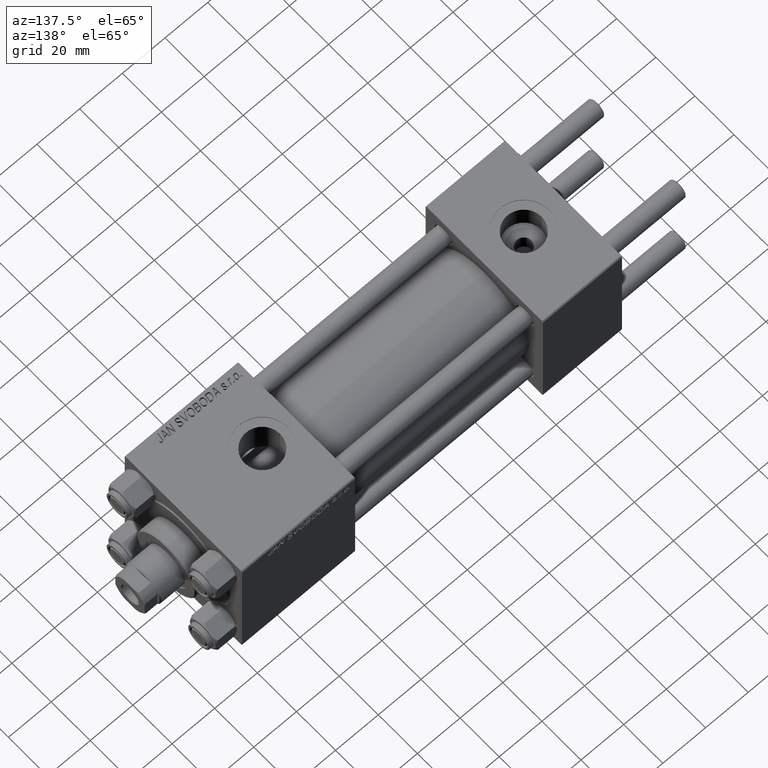
[diagram: clean part render]
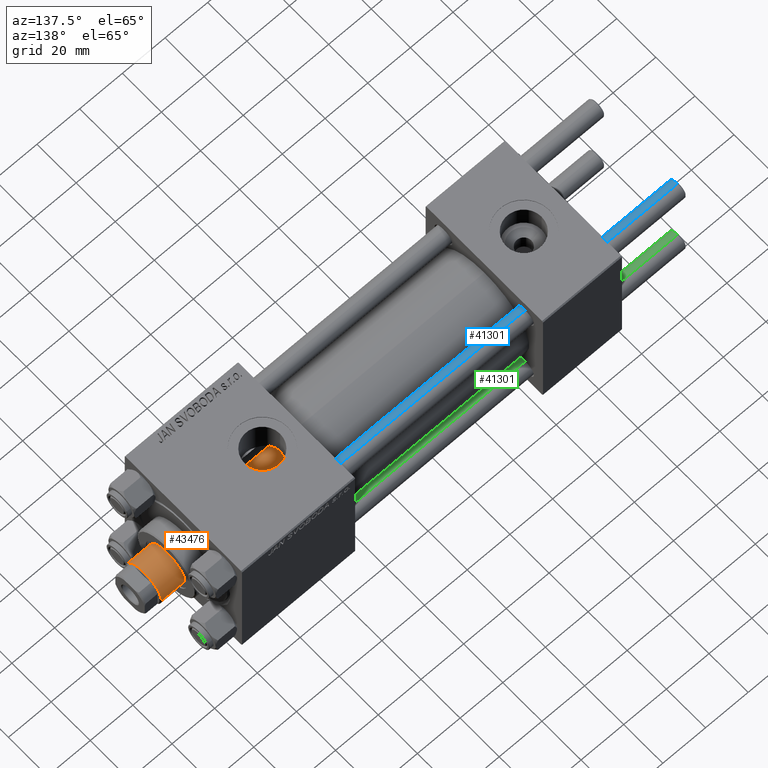
[diagram: same view with three faces highlighted in distinct colors, each labeled with its STEP entity id]
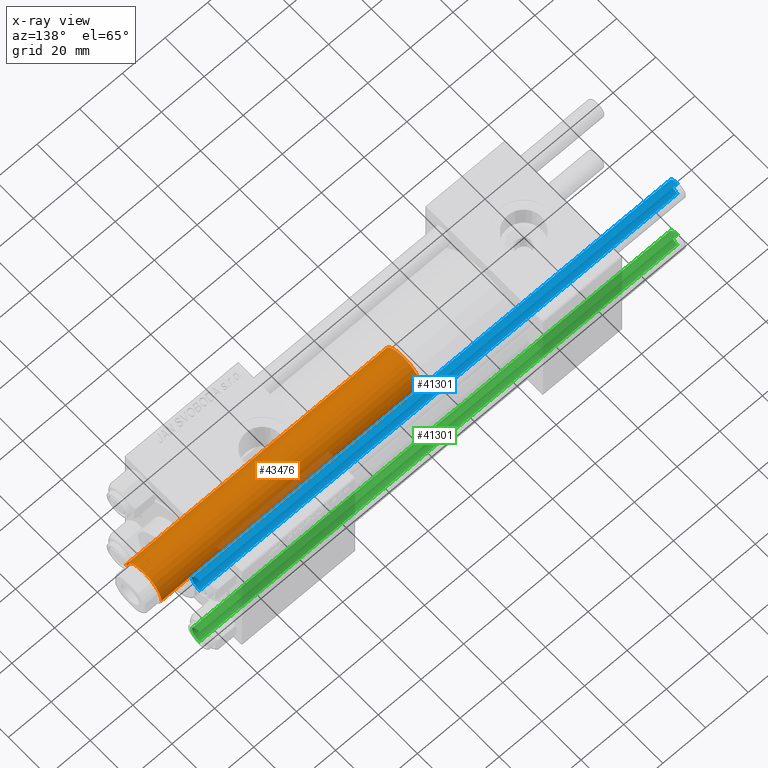
[diagram: x-ray of the same camera — body ghosted, the three highlighted faces saturated]
A machine part, auxiliary view with three faces highlighted in distinct colors.
The next image is the same camera in x-ray (body ghosted, the three faces saturated) — at least one of them is partly hidden behind the body in this view.
Their STEP definitions:

[orange] entity #43476 — the highlighted cylindrical surface (edge-blend (fillet) strip) has radius 9 mm, axis along (-1, 0, 0).
#1120 = CIRCLE ( 'NONE', #29295, 9.000000000000000000 ) ;
#7113 = LINE ( 'NONE', #37871, #36072 ) ;
#9808 = ORIENTED_EDGE ( 'NONE', *, *, #48099, .F. ) ;
#12389 = DIRECTION ( 'NONE',  ( -0.000000000000000000, -0.000000000000000000, -1.000000000000000000 ) ) ;
#14988 = EDGE_LOOP ( 'NONE', ( #9808, #23726, #15694, #40327 ) ) ;
#15213 = DIRECTION ( 'NONE',  ( -0.000000000000000000, -0.000000000000000000, -1.000000000000000000 ) ) ;
#15694 = ORIENTED_EDGE ( 'NONE', *, *, #18549, .T. ) ;
#16076 = CIRCLE ( 'NONE', #33002, 9.000000000000000000 ) ;
#16570 = VERTEX_POINT ( 'NONE', #23698 ) ;
#17887 = DIRECTION ( 'NONE',  ( 0.000000000000000000, 0.000000000000000000, -1.000000000000000000 ) ) ;
#18549 = EDGE_CURVE ( 'NONE', #21664, #40145, #7113, .T. ) ;
#18854 = EDGE_CURVE ( 'NONE', #16570, #21664, #16076, .T. ) ;
#20894 = EDGE_CURVE ( 'NONE', #40145, #45475, #1120, .T. ) ;
#21664 = VERTEX_POINT ( 'NONE', #38221 ) ;
#22798 = FACE_OUTER_BOUND ( 'NONE', #14988, .T. ) ;
#23698 = CARTESIAN_POINT ( 'NONE',  ( 9.000000000000000000, 1.102182119232617517E-15, 159.5000000000000853 ) ) ;
#23726 = ORIENTED_EDGE ( 'NONE', *, *, #18854, .T. ) ;
#29295 = AXIS2_PLACEMENT_3D ( 'NONE', #49321, #34175, #30151 ) ;
#30048 = DIRECTION ( 'NONE',  ( -0.000000000000000000, -0.000000000000000000, -1.000000000000000000 ) ) ;
#30151 = DIRECTION ( 'NONE',  ( 1.000000000000000000, 0.000000000000000000, 0.000000000000000000 ) ) ;
#30565 = CARTESIAN_POINT ( 'NONE',  ( -9.000000000000000000, 0.000000000000000000, 38.00000000000000000 ) ) ;
#33002 = AXIS2_PLACEMENT_3D ( 'NONE', #45863, #17887, #33526 ) ;
#33021 = AXIS2_PLACEMENT_3D ( 'NONE', #49794, #15213, #46246 ) ;
#33526 = DIRECTION ( 'NONE',  ( 1.000000000000000000, 0.000000000000000000, 0.000000000000000000 ) ) ;
#34175 = DIRECTION ( 'NONE',  ( 0.000000000000000000, 0.000000000000000000, 1.000000000000000000 ) ) ;
#36072 = VECTOR ( 'NONE', #30048, 1000.000000000000000 ) ;
#37871 = CARTESIAN_POINT ( 'NONE',  ( -9.000000000000000000, 0.000000000000000000, 160.0000000000000000 ) ) ;
#38182 = CYLINDRICAL_SURFACE ( 'NONE', #33021, 9.000000000000000000 ) ;
#38221 = CARTESIAN_POINT ( 'NONE',  ( -9.000000000000000000, 0.000000000000000000, 159.5000000000000853 ) ) ;
#38479 = CARTESIAN_POINT ( 'NONE',  ( 9.000000000000000000, 1.102182119232617517E-15, 38.00000000000000000 ) ) ;
#40145 = VERTEX_POINT ( 'NONE', #30565 ) ;
#40327 = ORIENTED_EDGE ( 'NONE', *, *, #20894, .T. ) ;
#42816 = VECTOR ( 'NONE', #12389, 1000.000000000000000 ) ;
#43406 = CARTESIAN_POINT ( 'NONE',  ( 9.000000000000000000, 1.102182119232617517E-15, 160.0000000000000000 ) ) ;
#43476 = ADVANCED_FACE ( 'NONE', ( #22798 ), #38182, .T. ) ;
#45475 = VERTEX_POINT ( 'NONE', #38479 ) ;
#45863 = CARTESIAN_POINT ( 'NONE',  ( 0.000000000000000000, 0.000000000000000000, 159.5000000000000853 ) ) ;
#46246 = DIRECTION ( 'NONE',  ( -1.000000000000000000, 0.000000000000000000, 0.000000000000000000 ) ) ;
#46940 = LINE ( 'NONE', #43406, #42816 ) ;
#48099 = EDGE_CURVE ( 'NONE', #16570, #45475, #46940, .T. ) ;
#49321 = CARTESIAN_POINT ( 'NONE',  ( 0.000000000000000000, 0.000000000000000000, 38.00000000000000000 ) ) ;
#49794 = CARTESIAN_POINT ( 'NONE',  ( 0.000000000000000000, 0.000000000000000000, 160.0000000000000000 ) ) ;

[blue] entity #41301 — the highlighted cylindrical surface (edge-blend (fillet) strip) has radius 4 mm, axis along (-1, -0, -0).
#277 = DIRECTION ( 'NONE',  ( 1.000000000000000000, 0.000000000000000000, 0.000000000000000000 ) ) ;
#646 = CYLINDRICAL_SURFACE ( 'NONE', #49187, 4.000000000000000000 ) ;
#1673 = CARTESIAN_POINT ( 'NONE',  ( -4.000000000000000000, 0.000000000000000000, 225.0000000000000000 ) ) ;
#1721 = DIRECTION ( 'NONE',  ( 0.000000000000000000, 0.000000000000000000, -1.000000000000000000 ) ) ;
#1852 = ORIENTED_EDGE ( 'NONE', *, *, #9739, .T. ) ;
#4015 = LINE ( 'NONE', #8553, #32376 ) ;
#4222 = CARTESIAN_POINT ( 'NONE',  ( -4.000000000000000000, 0.000000000000000000, 224.5000000000000000 ) ) ;
#6000 = CARTESIAN_POINT ( 'NONE',  ( 0.000000000000000000, 0.000000000000000000, 224.5000000000000000 ) ) ;
#8200 = ORIENTED_EDGE ( 'NONE', *, *, #8519, .T. ) ;
#8463 = VERTEX_POINT ( 'NONE', #4222 ) ;
#8519 = EDGE_CURVE ( 'NONE', #8463, #45992, #20829, .T. ) ;
#8553 = CARTESIAN_POINT ( 'NONE',  ( 4.000000000000000000, 4.898587196589412829E-16, 225.0000000000000000 ) ) ;
#9739 = EDGE_CURVE ( 'NONE', #45992, #28986, #10827, .T. ) ;
#9976 = VECTOR ( 'NONE', #39267, 1000.000000000000000 ) ;
#10827 = CIRCLE ( 'NONE', #19694, 4.000000000000000000 ) ;
#10943 = CARTESIAN_POINT ( 'NONE',  ( 4.000000000000000000, 4.898587196589412829E-16, 0.5000000000000281997 ) ) ;
#14560 = ORIENTED_EDGE ( 'NONE', *, *, #47577, .F. ) ;
#19694 = AXIS2_PLACEMENT_3D ( 'NONE', #34815, #30536, #277 ) ;
#20498 = CARTESIAN_POINT ( 'NONE',  ( -4.000000000000000000, 0.000000000000000000, 0.5000000000000281997 ) ) ;
#20829 = LINE ( 'NONE', #1673, #9976 ) ;
#22615 = CIRCLE ( 'NONE', #37840, 4.000000000000000000 ) ;
#27782 = CARTESIAN_POINT ( 'NONE',  ( 4.000000000000000000, 4.898587196589412829E-16, 224.5000000000000000 ) ) ;
#27870 = DIRECTION ( 'NONE',  ( -0.000000000000000000, -0.000000000000000000, -1.000000000000000000 ) ) ;
#28986 = VERTEX_POINT ( 'NONE', #10943 ) ;
#30536 = DIRECTION ( 'NONE',  ( -0.000000000000000000, -0.000000000000000000, 1.000000000000000000 ) ) ;
#30984 = DIRECTION ( 'NONE',  ( -0.000000000000000000, -0.000000000000000000, -1.000000000000000000 ) ) ;
#31398 = CARTESIAN_POINT ( 'NONE',  ( 0.000000000000000000, 0.000000000000000000, 225.0000000000000000 ) ) ;
#32376 = VECTOR ( 'NONE', #30984, 1000.000000000000000 ) ;
#32640 = EDGE_LOOP ( 'NONE', ( #14560, #33694, #8200, #1852 ) ) ;
#33694 = ORIENTED_EDGE ( 'NONE', *, *, #42943, .T. ) ;
#34815 = CARTESIAN_POINT ( 'NONE',  ( 0.000000000000000000, 0.000000000000000000, 0.5000000000000281997 ) ) ;
#35184 = FACE_OUTER_BOUND ( 'NONE', #32640, .T. ) ;
#36759 = DIRECTION ( 'NONE',  ( 1.000000000000000000, 0.000000000000000000, 0.000000000000000000 ) ) ;
#37840 = AXIS2_PLACEMENT_3D ( 'NONE', #6000, #1721, #36759 ) ;
#39267 = DIRECTION ( 'NONE',  ( -0.000000000000000000, -0.000000000000000000, -1.000000000000000000 ) ) ;
#39709 = DIRECTION ( 'NONE',  ( -1.000000000000000000, 0.000000000000000000, 0.000000000000000000 ) ) ;
#41301 = ADVANCED_FACE ( 'NONE', ( #35184 ), #646, .T. ) ;
#42943 = EDGE_CURVE ( 'NONE', #43802, #8463, #22615, .T. ) ;
#43802 = VERTEX_POINT ( 'NONE', #27782 ) ;
#45992 = VERTEX_POINT ( 'NONE', #20498 ) ;
#47577 = EDGE_CURVE ( 'NONE', #43802, #28986, #4015, .T. ) ;
#49187 = AXIS2_PLACEMENT_3D ( 'NONE', #31398, #27870, #39709 ) ;

[green] entity #41301 — the highlighted cylindrical surface (edge-blend (fillet) strip) has radius 4 mm, axis along (1, 0, -0).
#277 = DIRECTION ( 'NONE',  ( 1.000000000000000000, 0.000000000000000000, 0.000000000000000000 ) ) ;
#646 = CYLINDRICAL_SURFACE ( 'NONE', #49187, 4.000000000000000000 ) ;
#1673 = CARTESIAN_POINT ( 'NONE',  ( -4.000000000000000000, 0.000000000000000000, 225.0000000000000000 ) ) ;
#1721 = DIRECTION ( 'NONE',  ( 0.000000000000000000, 0.000000000000000000, -1.000000000000000000 ) ) ;
#1852 = ORIENTED_EDGE ( 'NONE', *, *, #9739, .T. ) ;
#4015 = LINE ( 'NONE', #8553, #32376 ) ;
#4222 = CARTESIAN_POINT ( 'NONE',  ( -4.000000000000000000, 0.000000000000000000, 224.5000000000000000 ) ) ;
#6000 = CARTESIAN_POINT ( 'NONE',  ( 0.000000000000000000, 0.000000000000000000, 224.5000000000000000 ) ) ;
#8200 = ORIENTED_EDGE ( 'NONE', *, *, #8519, .T. ) ;
#8463 = VERTEX_POINT ( 'NONE', #4222 ) ;
#8519 = EDGE_CURVE ( 'NONE', #8463, #45992, #20829, .T. ) ;
#8553 = CARTESIAN_POINT ( 'NONE',  ( 4.000000000000000000, 4.898587196589412829E-16, 225.0000000000000000 ) ) ;
#9739 = EDGE_CURVE ( 'NONE', #45992, #28986, #10827, .T. ) ;
#9976 = VECTOR ( 'NONE', #39267, 1000.000000000000000 ) ;
#10827 = CIRCLE ( 'NONE', #19694, 4.000000000000000000 ) ;
#10943 = CARTESIAN_POINT ( 'NONE',  ( 4.000000000000000000, 4.898587196589412829E-16, 0.5000000000000281997 ) ) ;
#14560 = ORIENTED_EDGE ( 'NONE', *, *, #47577, .F. ) ;
#19694 = AXIS2_PLACEMENT_3D ( 'NONE', #34815, #30536, #277 ) ;
#20498 = CARTESIAN_POINT ( 'NONE',  ( -4.000000000000000000, 0.000000000000000000, 0.5000000000000281997 ) ) ;
#20829 = LINE ( 'NONE', #1673, #9976 ) ;
#22615 = CIRCLE ( 'NONE', #37840, 4.000000000000000000 ) ;
#27782 = CARTESIAN_POINT ( 'NONE',  ( 4.000000000000000000, 4.898587196589412829E-16, 224.5000000000000000 ) ) ;
#27870 = DIRECTION ( 'NONE',  ( -0.000000000000000000, -0.000000000000000000, -1.000000000000000000 ) ) ;
#28986 = VERTEX_POINT ( 'NONE', #10943 ) ;
#30536 = DIRECTION ( 'NONE',  ( -0.000000000000000000, -0.000000000000000000, 1.000000000000000000 ) ) ;
#30984 = DIRECTION ( 'NONE',  ( -0.000000000000000000, -0.000000000000000000, -1.000000000000000000 ) ) ;
#31398 = CARTESIAN_POINT ( 'NONE',  ( 0.000000000000000000, 0.000000000000000000, 225.0000000000000000 ) ) ;
#32376 = VECTOR ( 'NONE', #30984, 1000.000000000000000 ) ;
#32640 = EDGE_LOOP ( 'NONE', ( #14560, #33694, #8200, #1852 ) ) ;
#33694 = ORIENTED_EDGE ( 'NONE', *, *, #42943, .T. ) ;
#34815 = CARTESIAN_POINT ( 'NONE',  ( 0.000000000000000000, 0.000000000000000000, 0.5000000000000281997 ) ) ;
#35184 = FACE_OUTER_BOUND ( 'NONE', #32640, .T. ) ;
#36759 = DIRECTION ( 'NONE',  ( 1.000000000000000000, 0.000000000000000000, 0.000000000000000000 ) ) ;
#37840 = AXIS2_PLACEMENT_3D ( 'NONE', #6000, #1721, #36759 ) ;
#39267 = DIRECTION ( 'NONE',  ( -0.000000000000000000, -0.000000000000000000, -1.000000000000000000 ) ) ;
#39709 = DIRECTION ( 'NONE',  ( -1.000000000000000000, 0.000000000000000000, 0.000000000000000000 ) ) ;
#41301 = ADVANCED_FACE ( 'NONE', ( #35184 ), #646, .T. ) ;
#42943 = EDGE_CURVE ( 'NONE', #43802, #8463, #22615, .T. ) ;
#43802 = VERTEX_POINT ( 'NONE', #27782 ) ;
#45992 = VERTEX_POINT ( 'NONE', #20498 ) ;
#47577 = EDGE_CURVE ( 'NONE', #43802, #28986, #4015, .T. ) ;
#49187 = AXIS2_PLACEMENT_3D ( 'NONE', #31398, #27870, #39709 ) ;